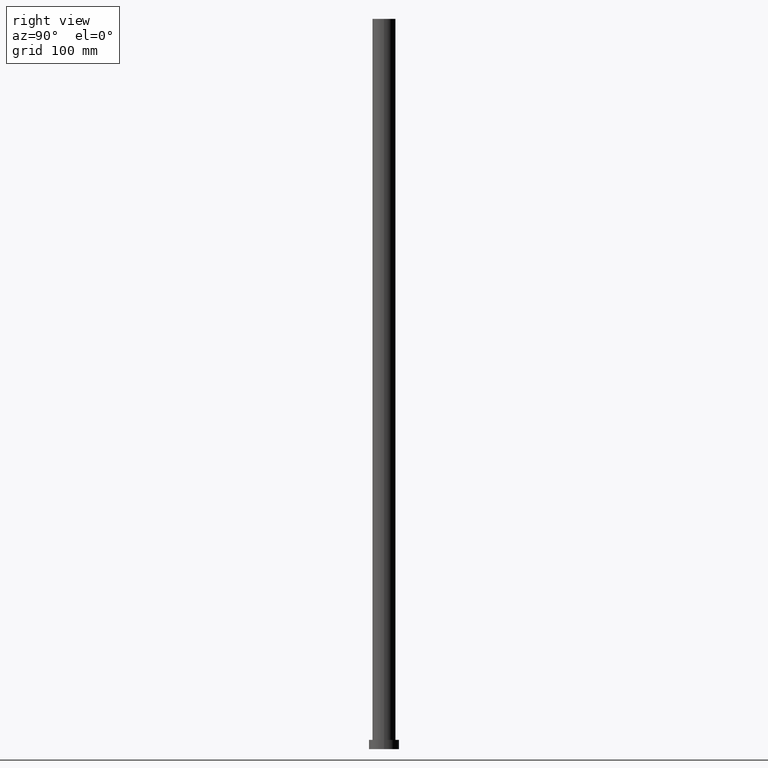
[diagram: clean part render]
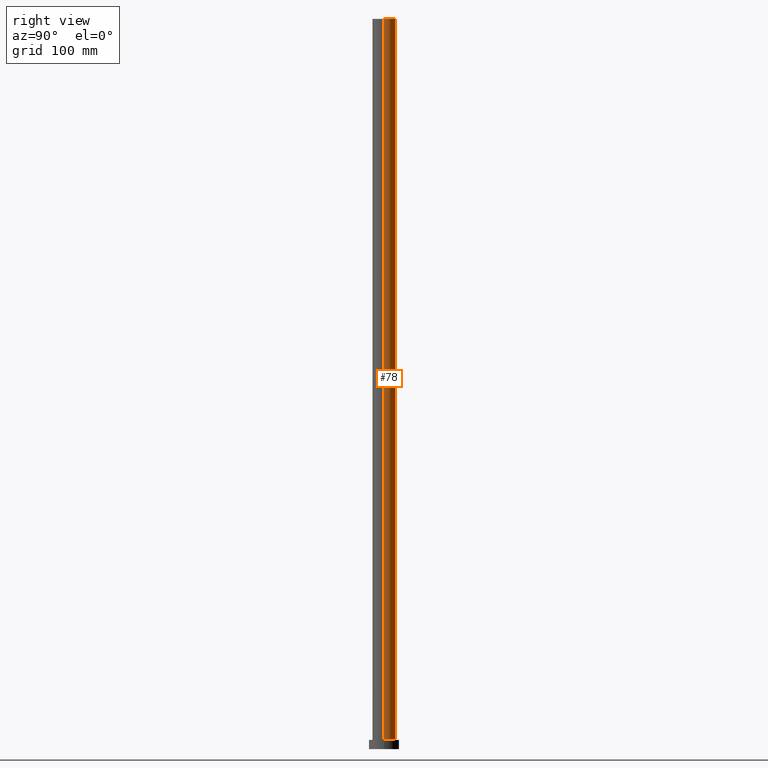
[diagram: same view with one face highlighted and labeled with its STEP entity id]
A machine part, right view. The second image highlights one B-rep face of the part: STEP entity #78.
In plain terms, the highlighted cylindrical surface (edge-blend (fillet) strip) has radius 10 mm, axis along (-0, -0, -1).
Its self-contained STEP definition (entity closure, byte-faithful):
#9 = ORIENTED_EDGE ( 'NONE', *, *, #11, .T. ) ;
#11 = EDGE_CURVE ( 'NONE', #195, #169, #97, .T. ) ;
#14 = DIRECTION ( 'NONE',  ( -1.000000000000000000, 0.000000000000000000, 0.000000000000000000 ) ) ;
#36 = VERTEX_POINT ( 'NONE', #200 ) ;
#38 = CARTESIAN_POINT ( 'NONE',  ( 10.00000000000000000, 1.224646799147353256E-15, 630.0000000000000000 ) ) ;
#41 = FACE_OUTER_BOUND ( 'NONE', #227, .T. ) ;
#43 = VECTOR ( 'NONE', #132, 1000.000000000000000 ) ;
#56 = LINE ( 'NONE', #38, #240 ) ;
#63 = AXIS2_PLACEMENT_3D ( 'NONE', #73, #122, #217 ) ;
#72 = CARTESIAN_POINT ( 'NONE',  ( 10.00000000000000000, 1.224646799147353256E-15, 8.000000000000000000 ) ) ;
#73 = CARTESIAN_POINT ( 'NONE',  ( 0.000000000000000000, 0.000000000000000000, 630.0000000000000000 ) ) ;
#78 = ADVANCED_FACE ( 'NONE', ( #41 ), #245, .T. ) ;
#97 = CIRCLE ( 'NONE', #134, 10.00000000000000000 ) ;
#100 = ORIENTED_EDGE ( 'NONE', *, *, #125, .T. ) ;
#117 = ORIENTED_EDGE ( 'NONE', *, *, #179, .F. ) ;
#122 = DIRECTION ( 'NONE',  ( 0.000000000000000000, 0.000000000000000000, 1.000000000000000000 ) ) ;
#124 = DIRECTION ( 'NONE',  ( -0.000000000000000000, -0.000000000000000000, -1.000000000000000000 ) ) ;
#125 = EDGE_CURVE ( 'NONE', #238, #195, #56, .T. ) ;
#126 = ORIENTED_EDGE ( 'NONE', *, *, #235, .F. ) ;
#132 = DIRECTION ( 'NONE',  ( -0.000000000000000000, -0.000000000000000000, -1.000000000000000000 ) ) ;
#134 = AXIS2_PLACEMENT_3D ( 'NONE', #214, #155, #139 ) ;
#139 = DIRECTION ( 'NONE',  ( 1.000000000000000000, 0.000000000000000000, 0.000000000000000000 ) ) ;
#155 = DIRECTION ( 'NONE',  ( 0.000000000000000000, 0.000000000000000000, 1.000000000000000000 ) ) ;
#168 = CIRCLE ( 'NONE', #63, 10.00000000000000000 ) ;
#169 = VERTEX_POINT ( 'NONE', #228 ) ;
#179 = EDGE_CURVE ( 'NONE', #36, #169, #236, .T. ) ;
#192 = CARTESIAN_POINT ( 'NONE',  ( 10.00000000000000000, 1.224646799147353256E-15, 630.0000000000000000 ) ) ;
#195 = VERTEX_POINT ( 'NONE', #72 ) ;
#200 = CARTESIAN_POINT ( 'NONE',  ( -10.00000000000000000, 0.000000000000000000, 630.0000000000000000 ) ) ;
#206 = CARTESIAN_POINT ( 'NONE',  ( 0.000000000000000000, 0.000000000000000000, 630.0000000000000000 ) ) ;
#209 = CARTESIAN_POINT ( 'NONE',  ( -10.00000000000000000, 0.000000000000000000, 630.0000000000000000 ) ) ;
#214 = CARTESIAN_POINT ( 'NONE',  ( 0.000000000000000000, 0.000000000000000000, 8.000000000000000000 ) ) ;
#217 = DIRECTION ( 'NONE',  ( 1.000000000000000000, 0.000000000000000000, 0.000000000000000000 ) ) ;
#227 = EDGE_LOOP ( 'NONE', ( #126, #100, #9, #117 ) ) ;
#228 = CARTESIAN_POINT ( 'NONE',  ( -10.00000000000000000, 0.000000000000000000, 8.000000000000000000 ) ) ;
#233 = AXIS2_PLACEMENT_3D ( 'NONE', #206, #124, #14 ) ;
#235 = EDGE_CURVE ( 'NONE', #238, #36, #168, .T. ) ;
#236 = LINE ( 'NONE', #209, #43 ) ;
#238 = VERTEX_POINT ( 'NONE', #192 ) ;
#240 = VECTOR ( 'NONE', #250, 1000.000000000000000 ) ;
#245 = CYLINDRICAL_SURFACE ( 'NONE', #233, 10.00000000000000000 ) ;
#250 = DIRECTION ( 'NONE',  ( -0.000000000000000000, -0.000000000000000000, -1.000000000000000000 ) ) ;